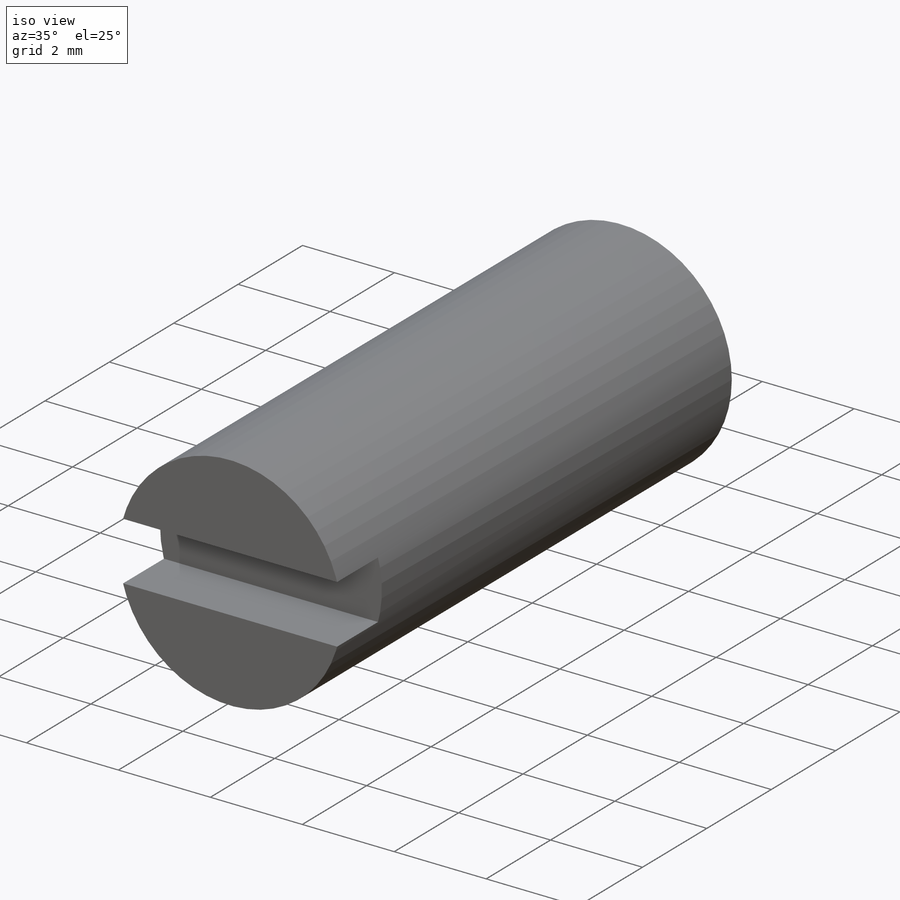
[diagram: iso view]
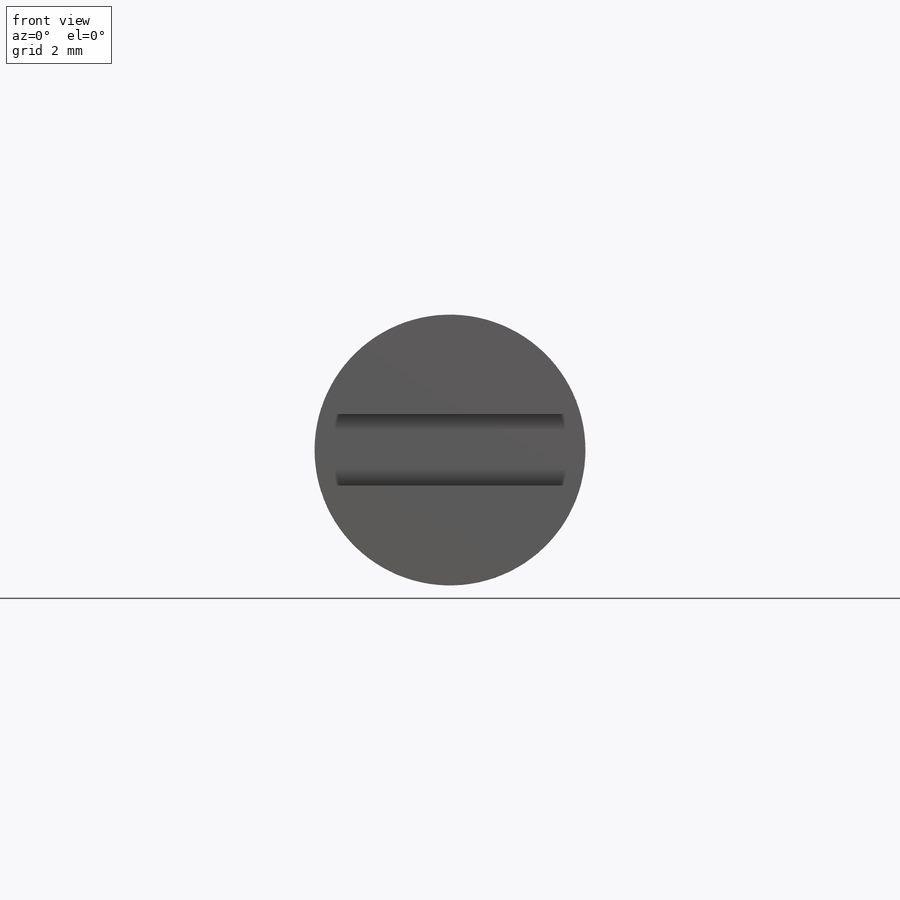
[diagram: front view]
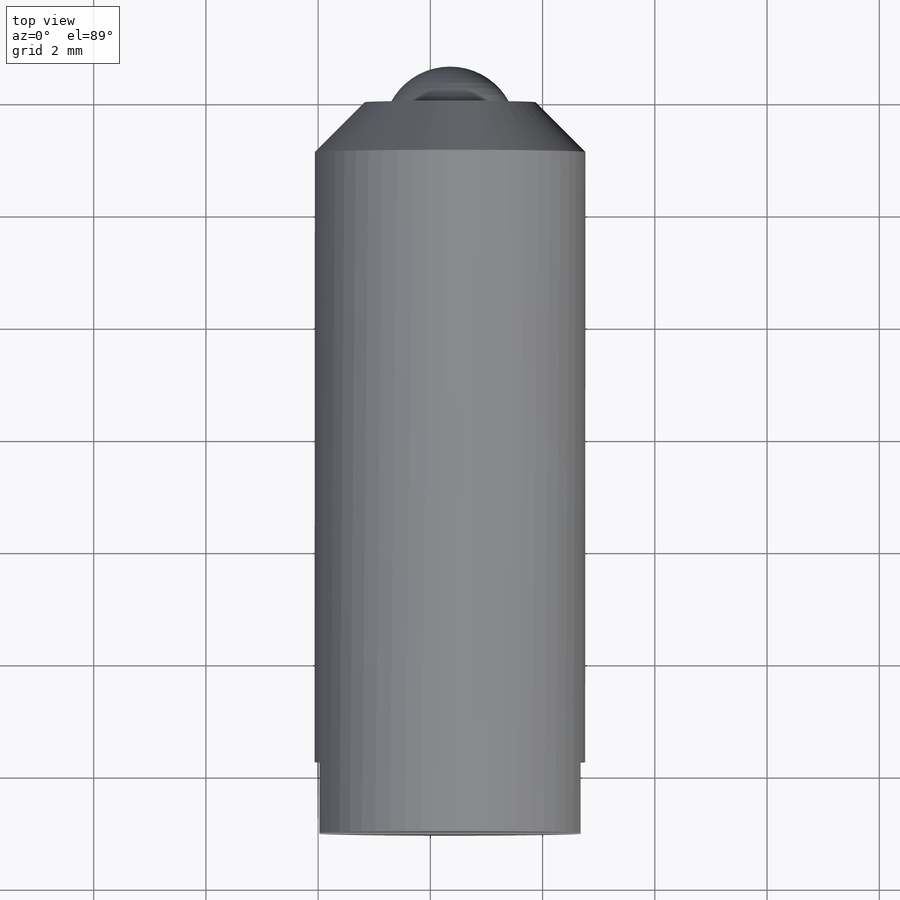
[diagram: top view]
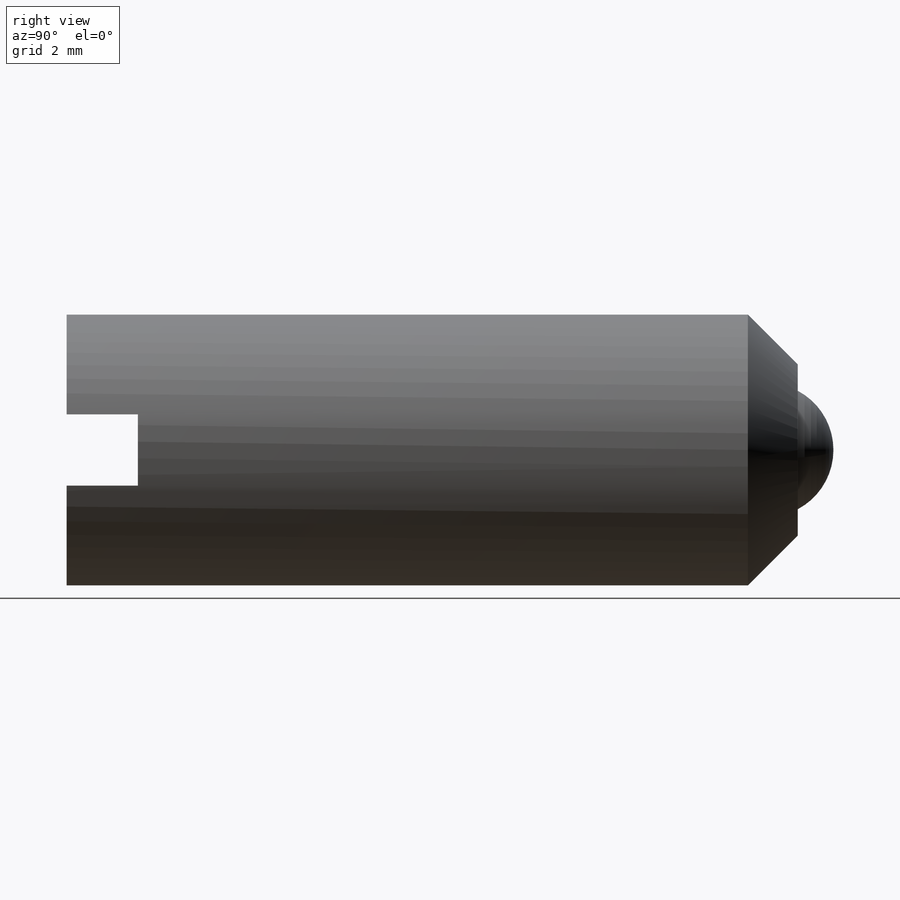
[diagram: right view]
SOLIDWORKS PART (.sldprt)
format: sldprt  version: not decoded by parser v0  size: 164,864 bytes
history: native  units: mm
features: sketch x3, material x1, extrude x1, chamfer x1, cut_extrude x1, revolve x1 (+13 scaffold rows collapsed)
feature tree (21):
  scaffold x13  (default folders/planes/origin — collapsed)
  material  "Material <not specified>"
  sketch  "Sketch1"  dims[D1=4.826mm]
  extrude  "Extrude1"  Depth=13.0302mm
  chamfer  "Chamfer1"  Distance=0.889mm Angle=45deg
  sketch  "Sketch3"  dims[D1=1.27mm]
  cut_extrude  "Cut-Extrude1"  Depth=1.27mm
  sketch  "Sketch4"  dims[D1=2.3876mm D2=0.635mm]
  revolve  "Revolve3"  Angle=360deg
decode coverage: 7 of 7 modeling features carry decoded parameters
note: suppression state not decoded; provenance and decode notes live in map.json
